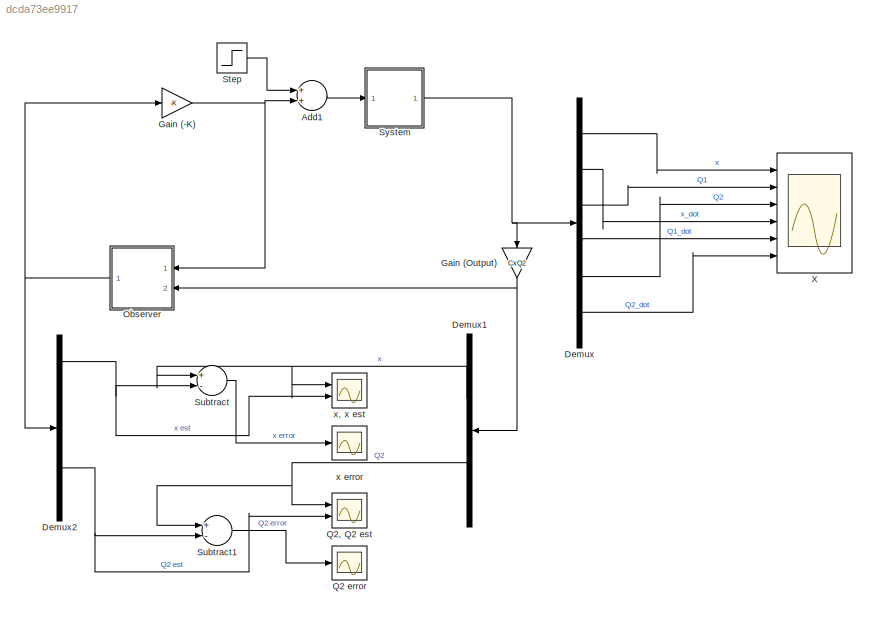
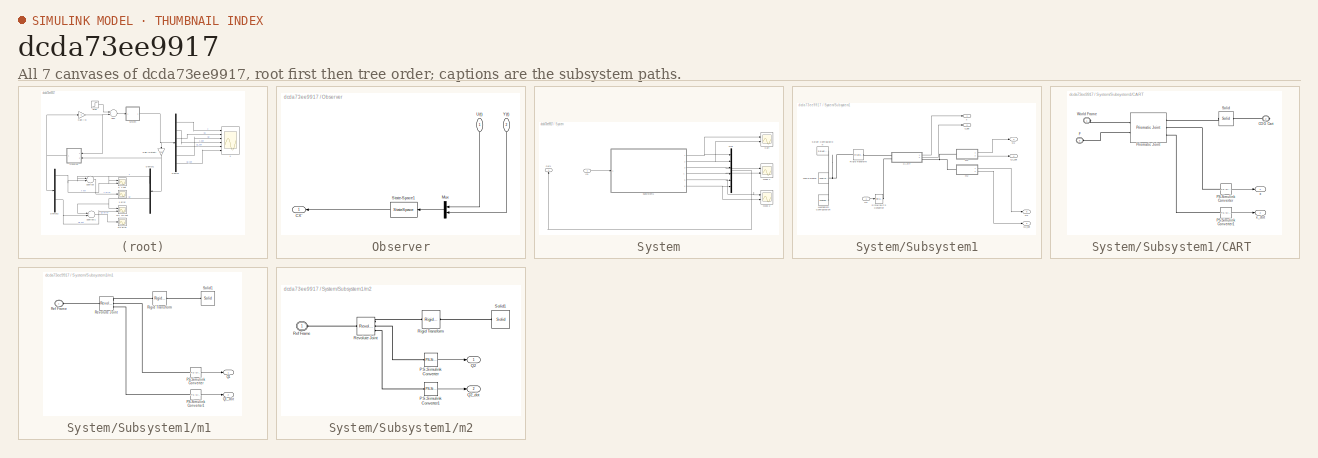
[diagram: thumbnail index - all 7 canvases of the model, root first then tree order]
MODEL slx_dcda73ee9917
KIND model
CONFIG AbsTol = auto
CONFIG FixedStep = auto
CONFIG MaxStep = auto
CONFIG MinStep = auto
CONFIG RelTol = 1e-3
CONFIG SampleTimeConstraint = Unconstrained
CONFIG Solver = VariableStepAuto
CONFIG SolverMode = Auto
CONFIG SolverName = VariableStepAuto
CONFIG StartTime = 0.0
CONFIG StopTime = 100
BLOCK [Sum] Add1
  InputSameDT = off
  OutDataTypeStr = Inherit: Inherit via internal rule
  Ports = [2, 1]
  SaturateOnIntegerOverflow = off
BLOCK [Demux] Demux
  DisplayOption = bar
  Outputs = 6
  Ports = [1, 6]
BLOCK [Demux] Demux1
  DisplayOption = bar
  Outputs = 2
  Ports = [1, 2]
BLOCK [Demux] Demux2
  DisplayOption = bar
  Outputs = 6
  Ports = [1, 6]
BLOCK [Gain] Gain (-K)
  Gain = -K
  Multiplication = Matrix(K*u) (u vector)
  OutDataTypeStr = Inherit: Inherit via internal rule
  ParamDataTypeStr = Inherit: Inherit via internal rule
  SaturateOnIntegerOverflow = off
BLOCK [Gain] Gain (Output)
  Gain = CxQ2
  Multiplication = Matrix(K*u) (u vector)
  OutDataTypeStr = Inherit: Inherit via internal rule
  ParamDataTypeStr = Inherit: Inherit via internal rule
  SaturateOnIntegerOverflow = off
BLOCK [SubSystem] Observer
  Ports = [2, 1]
  RequestExecContextInheritance = off
  Variant = off
BLOCK [Outport] Observer/CX'
  IconDisplay = Port number
BLOCK [Mux] Observer/Mux
  DisplayOption = bar
  Inputs = 2
  Ports = [2, 1]
BLOCK [StateSpace] Observer/State-Space1
  A = AxQ2_obs
  B = BxQ2_obs
  C = C_all
  D = DxQ2_obs
  Ports = [1, 1]
  X0 = X_0_xQ2_obs
BLOCK [Inport] Observer/U(t)
  IconDisplay = Port number
BLOCK [Inport] Observer/Y(t)
  IconDisplay = Port number
  Port = 2
BLOCK [Scope] Q2 error
  Ports = [1]
  ScopeSpecificationString = Simulink.scopes.TimeScopeBlockCfg('CurrentConfiguration', extmgr.ConfigurationSet(extmgr.Configuration('Core','General UI',true,'FigureColor',[1 1 1]),extmgr.Configuration('Core','Source UI',true),extmgr.Configuration('Sources','WiredSimulink',true,'DataLoggingVariableName','ScopeData4'),extmgr.Configuration('Visuals','Time Domain',true,'SerializedDisplays',{struct('MinYLimReal','-10.30349','MaxYL...<+2524ch>
BLOCK [Scope] Q2, Q2 est
  NumInputPorts = 2
  Ports = [2]
  ScopeSpecificationString = Simulink.scopes.TimeScopeBlockCfg('CurrentConfiguration', extmgr.ConfigurationSet(extmgr.Configuration('Core','General UI',true,'FigureColor',[1 1 1]),extmgr.Configuration('Core','Source UI',true),extmgr.Configuration('Sources','WiredSimulink',true,'DataLoggingVariableName','ScopeData5'),extmgr.Configuration('Visuals','Time Domain',true,'SerializedDisplays',{struct('MinYLimReal','-10.61721','MaxYL...<+2478ch>
BLOCK [Step] Step
  SampleTime = 0
  Time = 0
BLOCK [Sum] Subtract
  InputSameDT = off
  Inputs = +-
  OutDataTypeStr = Inherit: Inherit via internal rule
  Ports = [2, 1]
  SaturateOnIntegerOverflow = off
BLOCK [Sum] Subtract1
  InputSameDT = off
  Inputs = +-
  OutDataTypeStr = Inherit: Inherit via internal rule
  Ports = [2, 1]
  SaturateOnIntegerOverflow = off
BLOCK [SubSystem] System
  Ports = [1, 1]
  RequestExecContextInheritance = off
  Variant = off
BLOCK [Scope] System/Cart
  NumInputPorts = 2
  Ports = [2]
  ScopeSpecificationString = C++SS(StrPVP('SaveName','ScopeData1'),StrPVP('LimitDataPoints','on'),StrPVP('DataFormat','Array'),StrPVP('Decimation','1'),StrPVP('BlockParamSampleInput','off'))
BLOCK [Inport] System/In1
  IconDisplay = Port number
BLOCK [Scope] System/Mass 1
  NumInputPorts = 2
  Ports = [2]
  ScopeSpecificationString = C++SS(StrPVP('SaveName','ScopeData2'),StrPVP('LimitDataPoints','on'),StrPVP('DataFormat','Array'),StrPVP('Decimation','1'),StrPVP('BlockParamSampleInput','off'))
BLOCK [Scope] System/Mass 2
  NumInputPorts = 2
  Ports = [2]
  ScopeSpecificationString = C++SS(StrPVP('SaveName','ScopeData3'),StrPVP('LimitDataPoints','on'),StrPVP('DataFormat','Array'),StrPVP('Decimation','1'),StrPVP('BlockParamSampleInput','off'))
BLOCK [Mux] System/Mux
  DisplayOption = bar
  Inputs = 6
  Ports = [6, 1]
BLOCK [Outport] System/Out1
  IconDisplay = Port number
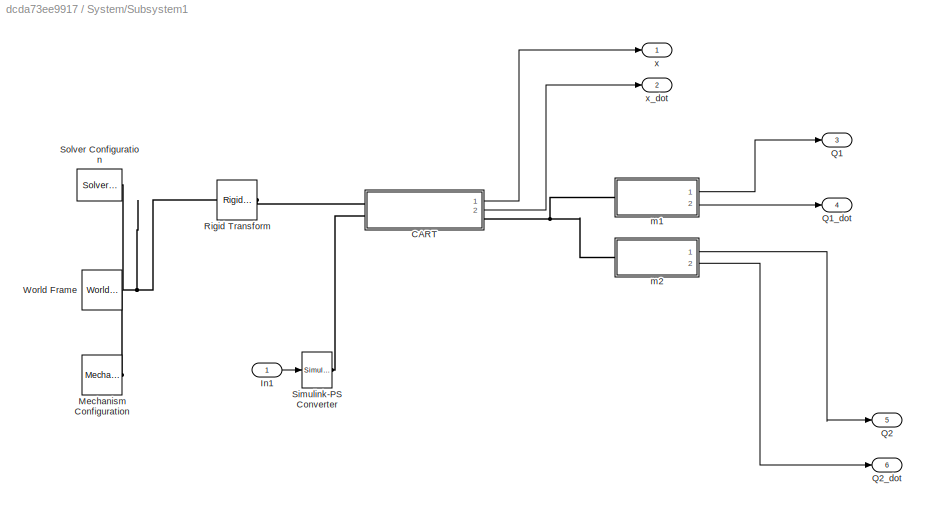
BLOCK [SubSystem] System/Subsystem1
  Ports = [1, 6]
  RequestExecContextInheritance = off
  Variant = off
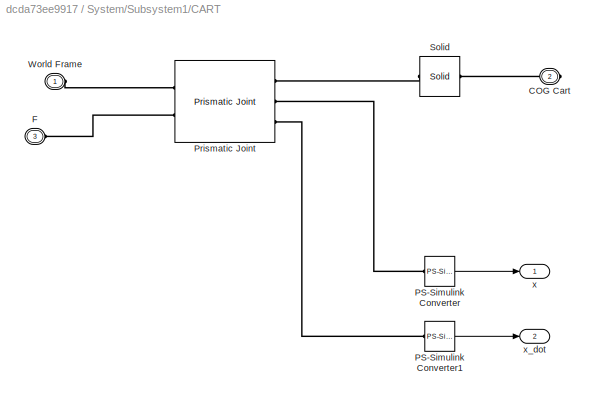
BLOCK [SubSystem] System/Subsystem1/CART 
  Ports = [0, 2, 0, 0, 0, 2, 1]
  RequestExecContextInheritance = off
  Variant = off
BLOCK [PMIOPort] System/Subsystem1/CART /COG Cart 
  Port = 2
  Side = Right
BLOCK [PMIOPort] System/Subsystem1/CART /F
  Port = 3
  Side = Left
BLOCK [Reference] System/Subsystem1/CART /PS-Simulink Converter  REF=nesl_utility/PS-Simulink
Converter
  Ports = [0, 1, 0, 0, 0, 1]
  SourceBlock = nesl_utility/PS-Simulink\nConverter
  SourceType = PS-Simulink\nConverter
BLOCK [Reference] System/Subsystem1/CART /PS-Simulink Converter1  REF=nesl_utility/PS-Simulink
Converter
  Ports = [0, 1, 0, 0, 0, 1]
  SourceBlock = nesl_utility/PS-Simulink\nConverter
  SourceType = PS-Simulink\nConverter
BLOCK [Reference] System/Subsystem1/CART /Prismatic Joint  REF=sm_lib/Joints/Prismatic
Joint
  Ports = [0, 0, 0, 0, 0, 2, 3]
  SourceBlock = sm_lib/Joints/Prismatic\nJoint
  SourceType = Prismatic\nJoint
BLOCK [Reference] System/Subsystem1/CART /Solid  REF=sm_lib/Body Elements/Solid
  Ports = [0, 0, 0, 0, 0, 1, 1]
  SourceBlock = sm_lib/Body Elements/Solid
  SourceType = Solid
BLOCK [PMIOPort] System/Subsystem1/CART /World Frame
  Port = 1
  Side = Left
BLOCK [Outport] System/Subsystem1/CART /x
  IconDisplay = Port number
BLOCK [Outport] System/Subsystem1/CART /x_dot 
  IconDisplay = Port number
  Port = 2
BLOCK [Inport] System/Subsystem1/In1
  IconDisplay = Port number
BLOCK [Reference] System/Subsystem1/Mechanism Configuration  REF=sm_lib/Utilities/Mechanism
Configuration
  Ports = [0, 0, 0, 0, 0, 0, 1]
  SourceBlock = sm_lib/Utilities/Mechanism\nConfiguration
  SourceType = Mechanism\nConfiguration
BLOCK [Outport] System/Subsystem1/Q1
  IconDisplay = Port number
  Port = 3
BLOCK [Outport] System/Subsystem1/Q1_dot
  IconDisplay = Port number
  Port = 4
BLOCK [Outport] System/Subsystem1/Q2
  IconDisplay = Port number
  Port = 5
BLOCK [Outport] System/Subsystem1/Q2_dot
  IconDisplay = Port number
  Port = 6
BLOCK [Reference] System/Subsystem1/Rigid Transform  REF=sm_lib/Frames and
Transforms/Rigid
Transform
  Ports = [0, 0, 0, 0, 0, 1, 1]
  SourceBlock = sm_lib/Frames and\nTransforms/Rigid\nTransform
  SourceType = Rigid\nTransform
BLOCK [Reference] System/Subsystem1/Simulink-PS Converter  REF=nesl_utility/Simulink-PS
Converter
  Ports = [1, 0, 0, 0, 0, 0, 1]
  SourceBlock = nesl_utility/Simulink-PS\nConverter
  SourceType = Simulink-PS\nConverter
BLOCK [Reference] System/Subsystem1/Solver Configuration  REF=nesl_utility/Solver
Configuration
  Ports = [0, 0, 0, 0, 0, 0, 1]
  SourceBlock = nesl_utility/Solver\nConfiguration
  SourceType = Solver\nConfiguration
BLOCK [Reference] System/Subsystem1/World Frame  REF=sm_lib/Frames and
Transforms/World Frame
  Ports = [0, 0, 0, 0, 0, 0, 1]
  SourceBlock = sm_lib/Frames and\nTransforms/World Frame
  SourceType = World Frame
BLOCK [SubSystem] System/Subsystem1/m1 
  Ports = [0, 2, 0, 0, 0, 1]
  RequestExecContextInheritance = off
  Variant = off
BLOCK [Reference] System/Subsystem1/m1 /PS-Simulink Converter  REF=nesl_utility/PS-Simulink
Converter
  Ports = [0, 1, 0, 0, 0, 1]
  SourceBlock = nesl_utility/PS-Simulink\nConverter
  SourceType = PS-Simulink\nConverter
BLOCK [Reference] System/Subsystem1/m1 /PS-Simulink Converter1  REF=nesl_utility/PS-Simulink
Converter
  Ports = [0, 1, 0, 0, 0, 1]
  SourceBlock = nesl_utility/PS-Simulink\nConverter
  SourceType = PS-Simulink\nConverter
BLOCK [Outport] System/Subsystem1/m1 /Q1
  IconDisplay = Port number
BLOCK [Outport] System/Subsystem1/m1 /Q1_dot 
  IconDisplay = Port number
  Port = 2
BLOCK [PMIOPort] System/Subsystem1/m1 /Ref Frame
  Port = 1
  Side = Left
BLOCK [Reference] System/Subsystem1/m1 /Revolute Joint  REF=sm_lib/Joints/Revolute Joint
  Ports = [0, 0, 0, 0, 0, 1, 3]
  SourceBlock = sm_lib/Joints/Revolute Joint
  SourceType = Revolute Joint
BLOCK [Reference] System/Subsystem1/m1 /Rigid Transform  REF=sm_lib/Frames and
Transforms/Rigid
Transform
  Ports = [0, 0, 0, 0, 0, 1, 1]
  SourceBlock = sm_lib/Frames and\nTransforms/Rigid\nTransform
  SourceType = Rigid\nTransform
BLOCK [Reference] System/Subsystem1/m1 /Solid1  REF=sm_lib/Body Elements/Solid
  Ports = [0, 0, 0, 0, 0, 0, 1]
  SourceBlock = sm_lib/Body Elements/Solid
  SourceType = Solid
BLOCK [SubSystem] System/Subsystem1/m2
  Ports = [0, 2, 0, 0, 0, 1]
  RequestExecContextInheritance = off
  Variant = off
BLOCK [Reference] System/Subsystem1/m2/PS-Simulink Converter  REF=nesl_utility/PS-Simulink
Converter
  Ports = [0, 1, 0, 0, 0, 1]
  SourceBlock = nesl_utility/PS-Simulink\nConverter
  SourceType = PS-Simulink\nConverter
BLOCK [Reference] System/Subsystem1/m2/PS-Simulink Converter1  REF=nesl_utility/PS-Simulink
Converter
  Ports = [0, 1, 0, 0, 0, 1]
  SourceBlock = nesl_utility/PS-Simulink\nConverter
  SourceType = PS-Simulink\nConverter
BLOCK [Outport] System/Subsystem1/m2/Q2
  IconDisplay = Port number
BLOCK [Outport] System/Subsystem1/m2/Q2_dot 
  IconDisplay = Port number
  Port = 2
BLOCK [PMIOPort] System/Subsystem1/m2/Ref Frame
  Port = 1
  Side = Left
BLOCK [Reference] System/Subsystem1/m2/Revolute Joint  REF=sm_lib/Joints/Revolute Joint
  Ports = [0, 0, 0, 0, 0, 1, 3]
  SourceBlock = sm_lib/Joints/Revolute Joint
  SourceType = Revolute Joint
BLOCK [Reference] System/Subsystem1/m2/Rigid Transform  REF=sm_lib/Frames and
Transforms/Rigid
Transform
  Ports = [0, 0, 0, 0, 0, 1, 1]
  SourceBlock = sm_lib/Frames and\nTransforms/Rigid\nTransform
  SourceType = Rigid\nTransform
BLOCK [Reference] System/Subsystem1/m2/Solid1  REF=sm_lib/Body Elements/Solid
  Ports = [0, 0, 0, 0, 0, 0, 1]
  SourceBlock = sm_lib/Body Elements/Solid
  SourceType = Solid
BLOCK [Outport] System/Subsystem1/x
  IconDisplay = Port number
BLOCK [Outport] System/Subsystem1/x_dot 
  IconDisplay = Port number
  Port = 2
BLOCK [Scope] X
  NumInputPorts = 6
  Ports = [6]
  ScopeSpecificationString = Simulink.scopes.TimeScopeBlockCfg('CurrentConfiguration', extmgr.ConfigurationSet(extmgr.Configuration('Core','General UI',true,'FigureColor',[1 1 1]),extmgr.Configuration('Core','Source UI',true),extmgr.Configuration('Sources','WiredSimulink',true,'DataLoggingVariableName','ScopeData1'),extmgr.Configuration('Visuals','Time Domain',true,'TimeAxisLabels','All','SerializedDisplays',{struct('MinYLimR...<+6606ch>
BLOCK [Scope] x error
  Ports = [1]
  ScopeSpecificationString = Simulink.scopes.TimeScopeBlockCfg('CurrentConfiguration', extmgr.ConfigurationSet(extmgr.Configuration('Core','General UI',true,'FigureColor',[1 1 1]),extmgr.Configuration('Core','Source UI',true),extmgr.Configuration('Sources','WiredSimulink',true,'DataLoggingVariableName','ScopeData2'),extmgr.Configuration('Visuals','Time Domain',true,'SerializedDisplays',{struct('MinYLimReal','-9.94531','MaxYLi...<+2519ch>
BLOCK [Scope] x, x est
  NumInputPorts = 2
  Ports = [2]
  ScopeSpecificationString = Simulink.scopes.TimeScopeBlockCfg('CurrentConfiguration', extmgr.ConfigurationSet(extmgr.Configuration('Core','General UI',true,'FigureColor',[1 1 1]),extmgr.Configuration('Core','Source UI',true),extmgr.Configuration('Sources','WiredSimulink',true,'DataLoggingVariableName','ScopeData3'),extmgr.Configuration('Visuals','Time Domain',true,'SerializedDisplays',{struct('MinYLimReal','-8.34814','MaxYLi...<+2405ch>
LINE Add1:1 -> System:1
NET Demux1:1 -> Subtract:1, x, x est:1
NET Demux1:2 -> Q2, Q2 est:1, Subtract1:1
NET Demux2:1 -> Subtract:2, x, x est:2
NET Demux2:5 -> Q2, Q2 est:2, Subtract1:2
LINE Demux:1 -> X:1
LINE Demux:2 -> X:4
LINE Demux:3 -> X:2
LINE Demux:4 -> X:5
LINE Demux:5 -> X:3
LINE Demux:6 -> X:6
NET Gain (-K):1 -> Add1:2, Observer:1
NET Gain (Output):1 -> Demux1:1, Observer:2
LINE Observer/Mux:1 -> Observer/State-Space1:1
LINE Observer/State-Space1:1 -> Observer/CX':1
LINE Observer/U(t):1 -> Observer/Mux:1
LINE Observer/Y(t):1 -> Observer/Mux:2
NET Observer:1 -> Demux2:1, Gain (-K):1
LINE Step:1 -> Add1:1
LINE Subtract1:1 -> Q2 error:1
LINE Subtract:1 -> x error:1
LINE System/In1:1 -> System/Subsystem1:1
LINE System/Mux:1 -> System/Out1:1
LINE System/Subsystem1/CART /PS-Simulink Converter1:1 -> System/Subsystem1/CART /x_dot :1
LINE System/Subsystem1/CART /PS-Simulink Converter:1 -> System/Subsystem1/CART /x:1
LINE System/Subsystem1/CART :1 -> System/Subsystem1/x:1
LINE System/Subsystem1/CART :2 -> System/Subsystem1/x_dot :1
LINE System/Subsystem1/In1:1 -> System/Subsystem1/Simulink-PS Converter:1
LINE System/Subsystem1/m1 /PS-Simulink Converter1:1 -> System/Subsystem1/m1 /Q1_dot :1
LINE System/Subsystem1/m1 /PS-Simulink Converter:1 -> System/Subsystem1/m1 /Q1:1
LINE System/Subsystem1/m1 :1 -> System/Subsystem1/Q1:1
LINE System/Subsystem1/m1 :2 -> System/Subsystem1/Q1_dot:1
LINE System/Subsystem1/m2/PS-Simulink Converter1:1 -> System/Subsystem1/m2/Q2_dot :1
LINE System/Subsystem1/m2/PS-Simulink Converter:1 -> System/Subsystem1/m2/Q2:1
LINE System/Subsystem1/m2:1 -> System/Subsystem1/Q2:1
LINE System/Subsystem1/m2:2 -> System/Subsystem1/Q2_dot:1
NET System/Subsystem1:1 -> System/Cart:1, System/Mux:1
NET System/Subsystem1:2 -> System/Cart:2, System/Mux:2
NET System/Subsystem1:3 -> System/Mass 1:1, System/Mux:3
NET System/Subsystem1:4 -> System/Mass 1:2, System/Mux:4
NET System/Subsystem1:5 -> System/Mass 2:1, System/Mux:5
NET System/Subsystem1:6 -> System/Mass 2:2, System/Mux:6
NET System:1 -> Demux:1, Gain (Output):1
PLINE System/Subsystem1/CART /COG Cart :RConn1 -- System/Subsystem1/CART /Solid:LConn1
PLINE System/Subsystem1/CART /F:RConn1 -- System/Subsystem1/CART /Prismatic Joint:LConn2
PLINE System/Subsystem1/CART /PS-Simulink Converter1:LConn1 -- System/Subsystem1/CART /Prismatic Joint:RConn3
PLINE System/Subsystem1/CART /PS-Simulink Converter:LConn1 -- System/Subsystem1/CART /Prismatic Joint:RConn2
PLINE System/Subsystem1/CART /Prismatic Joint:LConn1 -- System/Subsystem1/CART /World Frame:RConn1
PLINE System/Subsystem1/CART /Prismatic Joint:RConn1 -- System/Subsystem1/CART /Solid:RConn1
PLINE System/Subsystem1/CART :LConn1 -- System/Subsystem1/Rigid Transform:RConn1
PLINE System/Subsystem1/CART :LConn2 -- System/Subsystem1/Simulink-PS Converter:RConn1
PNET net1: System/Subsystem1/CART :RConn1 -- System/Subsystem1/m1 :LConn1 -- System/Subsystem1/m2:LConn1
PNET net2: System/Subsystem1/Mechanism Configuration:RConn1 -- System/Subsystem1/Rigid Transform:LConn1 -- System/Subsystem1/Solver Configuration:RConn1 -- System/Subsystem1/World Frame:RConn1
PLINE System/Subsystem1/m1 /PS-Simulink Converter1:LConn1 -- System/Subsystem1/m1 /Revolute Joint:RConn3
PLINE System/Subsystem1/m1 /PS-Simulink Converter:LConn1 -- System/Subsystem1/m1 /Revolute Joint:RConn2
PLINE System/Subsystem1/m1 /Ref Frame:RConn1 -- System/Subsystem1/m1 /Revolute Joint:LConn1
PLINE System/Subsystem1/m1 /Revolute Joint:RConn1 -- System/Subsystem1/m1 /Rigid Transform:LConn1
PLINE System/Subsystem1/m1 /Rigid Transform:RConn1 -- System/Subsystem1/m1 /Solid1:RConn1
PLINE System/Subsystem1/m2/PS-Simulink Converter1:LConn1 -- System/Subsystem1/m2/Revolute Joint:RConn3
PLINE System/Subsystem1/m2/PS-Simulink Converter:LConn1 -- System/Subsystem1/m2/Revolute Joint:RConn2
PLINE System/Subsystem1/m2/Ref Frame:RConn1 -- System/Subsystem1/m2/Revolute Joint:LConn1
PLINE System/Subsystem1/m2/Revolute Joint:RConn1 -- System/Subsystem1/m2/Rigid Transform:LConn1
PLINE System/Subsystem1/m2/Rigid Transform:RConn1 -- System/Subsystem1/m2/Solid1:RConn1
note: NET lines group one-source signal fan-out (src -> all destinations, sorted); 1:1 wires keep LINE; PNET lines group multi-terminal physical nets as a canonical sorted terminal list (undirected conserving connections); 2-terminal nets keep the pairwise PLINE form
